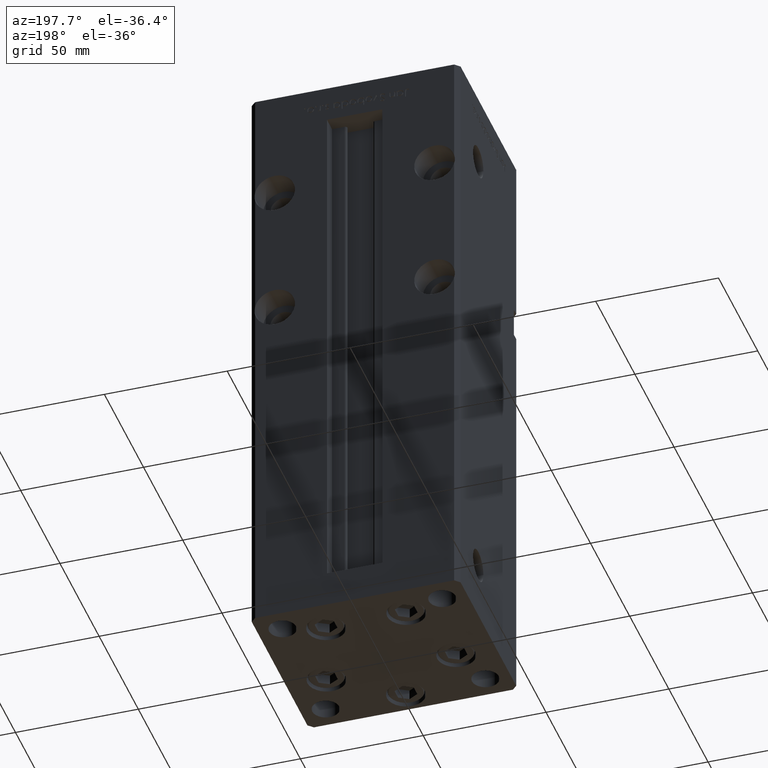
[diagram: clean part render]
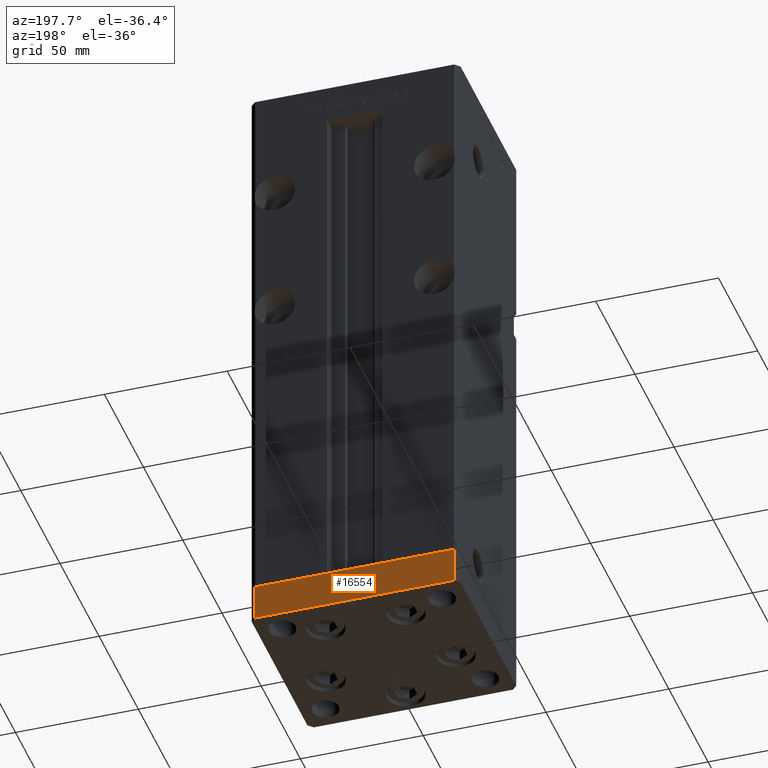
[diagram: same view with one face highlighted and labeled with its STEP entity id]
A machine part, auxiliary view. The second image highlights one B-rep face of the part: STEP entity #16554.
In plain terms, the highlighted planar face has unit normal (-0, 1, 0).
Its self-contained STEP definition (entity closure, byte-faithful):
#954 = CARTESIAN_POINT ( 'NONE',  ( 40.49999999999991473, 37.50000000000000711, 0.000000000000000000 ) ) ;
#1855 = DIRECTION ( 'NONE',  ( -3.426614273534436165E-16, 1.000000000000000000, 0.000000000000000000 ) ) ;
#1992 = DIRECTION ( 'NONE',  ( -1.000000000000000000, -3.426614273534436165E-16, 0.000000000000000000 ) ) ;
#3471 = EDGE_CURVE ( 'NONE', #6508, #38608, #31803, .T. ) ;
#5886 = FACE_OUTER_BOUND ( 'NONE', #6232, .T. ) ;
#6232 = EDGE_LOOP ( 'NONE', ( #33220, #6399, #45064, #41434 ) ) ;
#6399 = ORIENTED_EDGE ( 'NONE', *, *, #35974, .F. ) ;
#6508 = VERTEX_POINT ( 'NONE', #954 ) ;
#8584 = CARTESIAN_POINT ( 'NONE',  ( 40.49999999999991473, 37.50000000000000711, -15.00000000000000000 ) ) ;
#10585 = CARTESIAN_POINT ( 'NONE',  ( 40.49999999999991473, 37.50000000000000711, 0.000000000000000000 ) ) ;
#11544 = VECTOR ( 'NONE', #17670, 1000.000000000000000 ) ;
#14338 = DIRECTION ( 'NONE',  ( -1.000000000000000000, -3.426614273534436165E-16, 0.000000000000000000 ) ) ;
#16554 = ADVANCED_FACE ( 'NONE', ( #5886 ), #37577, .T. ) ;
#17150 = LINE ( 'NONE', #41051, #40722 ) ;
#17670 = DIRECTION ( 'NONE',  ( 0.000000000000000000, 0.000000000000000000, 1.000000000000000000 ) ) ;
#18343 = AXIS2_PLACEMENT_3D ( 'NONE', #37845, #1855, #34627 ) ;
#18547 = VECTOR ( 'NONE', #14338, 1000.000000000000000 ) ;
#22080 = VERTEX_POINT ( 'NONE', #8584 ) ;
#25464 = LINE ( 'NONE', #25728, #11544 ) ;
#25728 = CARTESIAN_POINT ( 'NONE',  ( 40.49999999999991473, 37.50000000000000711, -15.00000000000000000 ) ) ;
#26343 = VERTEX_POINT ( 'NONE', #45880 ) ;
#26518 = VECTOR ( 'NONE', #1992, 1000.000000000000000 ) ;
#29975 = CARTESIAN_POINT ( 'NONE',  ( -40.50000000000000711, 37.49999999999997868, 0.000000000000000000 ) ) ;
#31803 = LINE ( 'NONE', #10585, #26518 ) ;
#33220 = ORIENTED_EDGE ( 'NONE', *, *, #3471, .F. ) ;
#34627 = DIRECTION ( 'NONE',  ( -1.000000000000000000, -3.426614273534436165E-16, 0.000000000000000000 ) ) ;
#35974 = EDGE_CURVE ( 'NONE', #22080, #6508, #25464, .T. ) ;
#37577 = PLANE ( 'NONE',  #18343 ) ;
#37845 = CARTESIAN_POINT ( 'NONE',  ( 40.49999999999991473, 37.50000000000000711, -15.00000000000000000 ) ) ;
#37889 = EDGE_CURVE ( 'NONE', #26343, #38608, #17150, .T. ) ;
#38608 = VERTEX_POINT ( 'NONE', #29975 ) ;
#39839 = EDGE_CURVE ( 'NONE', #22080, #26343, #46846, .T. ) ;
#40722 = VECTOR ( 'NONE', #41844, 1000.000000000000000 ) ;
#41051 = CARTESIAN_POINT ( 'NONE',  ( -40.50000000000000711, 37.49999999999997868, -15.00000000000000000 ) ) ;
#41434 = ORIENTED_EDGE ( 'NONE', *, *, #37889, .T. ) ;
#41844 = DIRECTION ( 'NONE',  ( 0.000000000000000000, 0.000000000000000000, 1.000000000000000000 ) ) ;
#45064 = ORIENTED_EDGE ( 'NONE', *, *, #39839, .T. ) ;
#45880 = CARTESIAN_POINT ( 'NONE',  ( -40.50000000000000711, 37.49999999999997868, -15.00000000000000000 ) ) ;
#46846 = LINE ( 'NONE', #51141, #18547 ) ;
#51141 = CARTESIAN_POINT ( 'NONE',  ( 40.49999999999991473, 37.50000000000000711, -15.00000000000000000 ) ) ;